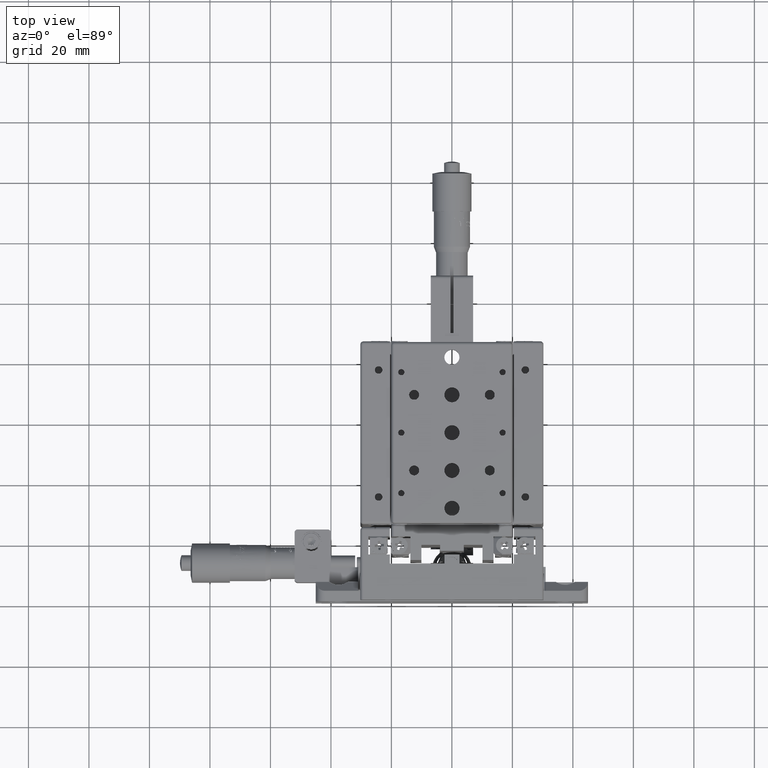
[diagram: clean part render]
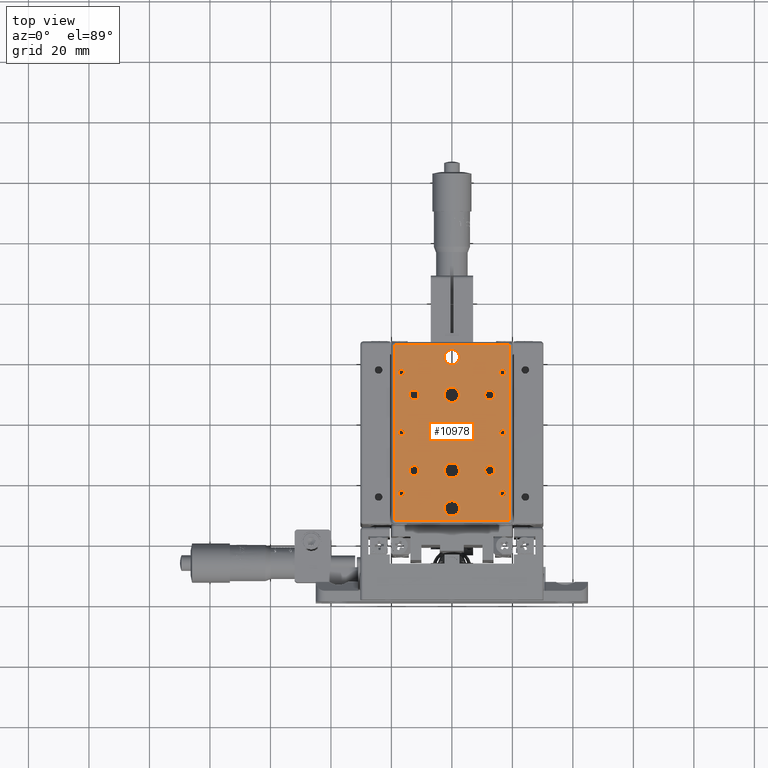
[diagram: same view with one face highlighted and labeled with its STEP entity id]
A machine part, top view. The second image highlights one B-rep face of the part: STEP entity #10978.
In plain terms, the highlighted planar face has unit normal (0, 0, 1).
Its self-contained STEP definition (entity closure, byte-faithful):
#200 = EDGE_CURVE ( 'NONE', #46611, #78117, #34506, .T. ) ;
#279 = VERTEX_POINT ( 'NONE', #13107 ) ;
#371 = VERTEX_POINT ( 'NONE', #43869 ) ;
#702 = AXIS2_PLACEMENT_3D ( 'NONE', #38080, #85993, #44996 ) ;
#1061 = VERTEX_POINT ( 'NONE', #64073 ) ;
#1200 = CIRCLE ( 'NONE', #30913, 1.024999999999994600 ) ;
#1477 = CARTESIAN_POINT ( 'NONE',  ( -18.99999999999952400, 25.05000000000111300, 48.70000000000028700 ) ) ;
#1524 = CIRCLE ( 'NONE', #6821, 1.649999999999998600 ) ;
#1662 = ORIENTED_EDGE ( 'NONE', *, *, #200, .F. ) ;
#2173 = FACE_BOUND ( 'NONE', #4326, .T. ) ;
#2204 = CARTESIAN_POINT ( 'NONE',  ( -12.49999999999950100, 44.20000000000111100, 48.70000000000017300 ) ) ;
#2434 = CARTESIAN_POINT ( 'NONE',  ( 12.50000000000051300, 69.20000000000111100, 48.69999999999976800 ) ) ;
#2708 = VERTEX_POINT ( 'NONE', #81627 ) ;
#2915 = ORIENTED_EDGE ( 'NONE', *, *, #57883, .F. ) ;
#3169 = DIRECTION ( 'NONE',  ( 1.535644949270787300E-014, 3.453685575127654400E-016, 1.000000000000000000 ) ) ;
#3224 = CARTESIAN_POINT ( 'NONE',  ( 5.338210854434249900E-013, 55.05000000000111300, 48.69999999999997400 ) ) ;
#3680 = EDGE_CURVE ( 'NONE', #66928, #82567, #68589, .T. ) ;
#3790 = DIRECTION ( 'NONE',  ( 0.0000000000000000000, -1.000000000000000000, 0.0000000000000000000 ) ) ;
#3983 = CIRCLE ( 'NONE', #57842, 1.024999999999994600 ) ;
#3984 = VERTEX_POINT ( 'NONE', #80500 ) ;
#4004 = EDGE_LOOP ( 'NONE', ( #76847, #74709 ) ) ;
#4287 = CARTESIAN_POINT ( 'NONE',  ( -16.74999999999947800, 75.05000000000112000, 48.70000000000023700 ) ) ;
#4326 = EDGE_LOOP ( 'NONE', ( #41411, #31087 ) ) ;
#4362 = VERTEX_POINT ( 'NONE', #26205 ) ;
#4372 = FACE_BOUND ( 'NONE', #62436, .T. ) ;
#4480 = CARTESIAN_POINT ( 'NONE',  ( 5.373378207125556400E-013, 42.55000000000111300, 48.69999999999997400 ) ) ;
#5045 = LINE ( 'NONE', #15999, #75563 ) ;
#5178 = VERTEX_POINT ( 'NONE', #73928 ) ;
#5508 = EDGE_CURVE ( 'NONE', #30876, #81848, #18377, .T. ) ;
#5647 = DIRECTION ( 'NONE',  ( 1.000000000000000000, 0.0000000000000000000, -1.353930517835563900E-014 ) ) ;
#5651 = AXIS2_PLACEMENT_3D ( 'NONE', #55960, #14995, #62863 ) ;
#5884 = ORIENTED_EDGE ( 'NONE', *, *, #54168, .T. ) ;
#6234 = CARTESIAN_POINT ( 'NONE',  ( 5.374739161144865200E-013, 27.55000000000111300, 48.69999999999998200 ) ) ;
#6543 = EDGE_CURVE ( 'NONE', #12878, #25160, #9501, .T. ) ;
#6648 = CARTESIAN_POINT ( 'NONE',  ( 4.877260638976063900E-013, 45.05000000000112000, 48.69999999999997400 ) ) ;
#6697 = CARTESIAN_POINT ( 'NONE',  ( 16.75000000000050800, 54.02500000000112100, 48.69999999999970400 ) ) ;
#6821 = AXIS2_PLACEMENT_3D ( 'NONE', #48120, #7234, #55035 ) ;
#6962 = AXIS2_PLACEMENT_3D ( 'NONE', #10222, #58029, #17058 ) ;
#7163 = CARTESIAN_POINT ( 'NONE',  ( -16.74999999999951700, 74.02500000000111400, 48.70000000000023700 ) ) ;
#7234 = DIRECTION ( 'NONE',  ( 1.535644949270787300E-014, 3.453685575127654400E-016, 1.000000000000000000 ) ) ;
#7592 = EDGE_LOOP ( 'NONE', ( #29424, #38401 ) ) ;
#7988 = VERTEX_POINT ( 'NONE', #65496 ) ;
#8413 = DIRECTION ( 'NONE',  ( 1.000000000000000000, 3.783065374157739300E-018, -1.610438921456060900E-014 ) ) ;
#9022 = CARTESIAN_POINT ( 'NONE',  ( 12.50000000000051300, 44.20000000000111100, 48.69999999999976800 ) ) ;
#9169 = EDGE_CURVE ( 'NONE', #20147, #28609, #26183, .T. ) ;
#9282 = CARTESIAN_POINT ( 'NONE',  ( 19.00000000000053300, 25.05000000000111300, 48.69999999999967600 ) ) ;
#9366 = DIRECTION ( 'NONE',  ( 1.535644949270787300E-014, 3.453685575127654400E-016, 1.000000000000000000 ) ) ;
#9501 = CIRCLE ( 'NONE', #67448, 1.649999999999998600 ) ;
#9900 = LINE ( 'NONE', #86913, #30144 ) ;
#10138 = DIRECTION ( 'NONE',  ( 3.783065374154825700E-018, -1.000000000000000000, 0.0000000000000000000 ) ) ;
#10222 = CARTESIAN_POINT ( 'NONE',  ( 16.75000000000054700, 75.05000000000112000, 48.69999999999969700 ) ) ;
#10538 = ORIENTED_EDGE ( 'NONE', *, *, #74605, .F. ) ;
#10550 = ORIENTED_EDGE ( 'NONE', *, *, #9169, .F. ) ;
#10664 = EDGE_CURVE ( 'NONE', #29086, #37454, #45061, .T. ) ;
#10978 = ADVANCED_FACE ( 'NONE', ( #40646, #58931, #22528, #4372, #74888, #24658, #56761, #38509, #20342, #2173, #72790, #54585, #36340, #18224, #88835, #70616 ), #55927, .T. ) ;
#11053 = CIRCLE ( 'NONE', #81616, 2.500000000000002200 ) ;
#11183 = DIRECTION ( 'NONE',  ( 1.000000000000000000, 0.0000000000000000000, -1.353930517835563900E-014 ) ) ;
#11372 = DIRECTION ( 'NONE',  ( 3.783065374154825700E-018, -1.000000000000000000, 0.0000000000000000000 ) ) ;
#11489 = DIRECTION ( 'NONE',  ( 1.610438921456060900E-014, 3.453685575127654900E-016, 1.000000000000000000 ) ) ;
#11508 = ORIENTED_EDGE ( 'NONE', *, *, #43019, .T. ) ;
#11736 = EDGE_CURVE ( 'NONE', #25805, #82349, #60781, .T. ) ;
#12159 = CARTESIAN_POINT ( 'NONE',  ( -16.74999999999947800, 55.05000000000111300, 48.70000000000024400 ) ) ;
#12242 = CIRCLE ( 'NONE', #702, 1.024999999999994600 ) ;
#12878 = VERTEX_POINT ( 'NONE', #2434 ) ;
#13025 = CARTESIAN_POINT ( 'NONE',  ( -18.99999999999952400, 84.05000000000110600, 48.70000000000027300 ) ) ;
#13107 = CARTESIAN_POINT ( 'NONE',  ( 16.75000000000050800, 76.07500000000111100, 48.69999999999969700 ) ) ;
#13913 = EDGE_CURVE ( 'NONE', #15892, #79381, #21889, .T. ) ;
#14015 = EDGE_CURVE ( 'NONE', #371, #42203, #1524, .T. ) ;
#14378 = CARTESIAN_POINT ( 'NONE',  ( 5.374644584510511300E-013, 30.05000000000110900, 48.69999999999998200 ) ) ;
#14429 = CIRCLE ( 'NONE', #49945, 2.500000000000002200 ) ;
#14995 = DIRECTION ( 'NONE',  ( 1.535644949270787300E-014, 3.453685575127654400E-016, 1.000000000000000000 ) ) ;
#15269 = AXIS2_PLACEMENT_3D ( 'NONE', #12159, #59952, #18964 ) ;
#15892 = VERTEX_POINT ( 'NONE', #2204 ) ;
#15999 = CARTESIAN_POINT ( 'NONE',  ( -18.99999999999952400, 25.05000000000111300, 48.70000000000028700 ) ) ;
#16140 = DIRECTION ( 'NONE',  ( -3.783065374163912300E-018, 1.000000000000000000, -2.343462550502514100E-016 ) ) ;
#16359 = EDGE_LOOP ( 'NONE', ( #23726, #49791 ) ) ;
#16689 = CARTESIAN_POINT ( 'NONE',  ( 5.338305431068603800E-013, 52.55000000000111300, 48.69999999999997400 ) ) ;
#16916 = CARTESIAN_POINT ( 'NONE',  ( 12.50000000000054200, 65.90000000000111400, 48.69999999999976800 ) ) ;
#17058 = DIRECTION ( 'NONE',  ( 1.000000000000000000, 0.0000000000000000000, -1.353930517835563900E-014 ) ) ;
#17517 = EDGE_CURVE ( 'NONE', #28609, #20147, #42220, .T. ) ;
#17821 = DIRECTION ( 'NONE',  ( 1.610438921456060900E-014, 3.453685575127654900E-016, 1.000000000000000000 ) ) ;
#17940 = CIRCLE ( 'NONE', #78567, 1.649999999999998600 ) ;
#18070 = AXIS2_PLACEMENT_3D ( 'NONE', #39535, #87415, #46431 ) ;
#18224 = FACE_BOUND ( 'NONE', #57721, .T. ) ;
#18377 = CIRCLE ( 'NONE', #24983, 1.024999999999994600 ) ;
#18964 = DIRECTION ( 'NONE',  ( 1.000000000000000000, 0.0000000000000000000, -1.353930517835563900E-014 ) ) ;
#19071 = DIRECTION ( 'NONE',  ( 1.535644949270787300E-014, 3.453685575127654400E-016, 1.000000000000000000 ) ) ;
#19266 = ORIENTED_EDGE ( 'NONE', *, *, #69634, .T. ) ;
#19818 = ORIENTED_EDGE ( 'NONE', *, *, #25253, .F. ) ;
#20147 = VERTEX_POINT ( 'NONE', #16689 ) ;
#20342 = FACE_BOUND ( 'NONE', #38930, .T. ) ;
#20378 = ORIENTED_EDGE ( 'NONE', *, *, #3680, .F. ) ;
#21249 = DIRECTION ( 'NONE',  ( 3.783065374154831100E-018, -1.000000000000000000, 0.0000000000000000000 ) ) ;
#21562 = AXIS2_PLACEMENT_3D ( 'NONE', #63600, #22627, #70432 ) ;
#21889 = CIRCLE ( 'NONE', #77224, 1.649999999999998600 ) ;
#22207 = CARTESIAN_POINT ( 'NONE',  ( 5.372847628457783900E-013, 77.55000000000112000, 48.69999999999996700 ) ) ;
#22528 = FACE_BOUND ( 'NONE', #76607, .T. ) ;
#22627 = DIRECTION ( 'NONE',  ( 1.535644949270787300E-014, 3.453685575127654400E-016, 1.000000000000000000 ) ) ;
#23252 = DIRECTION ( 'NONE',  ( 1.535644949270787300E-014, 3.453685575127654400E-016, 1.000000000000000000 ) ) ;
#23726 = ORIENTED_EDGE ( 'NONE', *, *, #79246, .F. ) ;
#24658 = FACE_BOUND ( 'NONE', #74155, .T. ) ;
#24970 = DIRECTION ( 'NONE',  ( 1.535644949270787300E-014, 3.453685575127654400E-016, 1.000000000000000000 ) ) ;
#24976 = AXIS2_PLACEMENT_3D ( 'NONE', #36334, #84297, #43225 ) ;
#24983 = AXIS2_PLACEMENT_3D ( 'NONE', #78411, #37394, #85332 ) ;
#25160 = VERTEX_POINT ( 'NONE', #16916 ) ;
#25253 = EDGE_CURVE ( 'NONE', #49248, #83910, #11053, .T. ) ;
#25645 = EDGE_CURVE ( 'NONE', #3984, #63080, #77190, .T. ) ;
#25781 = CARTESIAN_POINT ( 'NONE',  ( -16.74999999999947800, 35.05000000000110600, 48.70000000000025200 ) ) ;
#25805 = VERTEX_POINT ( 'NONE', #86177 ) ;
#25877 = CARTESIAN_POINT ( 'NONE',  ( 4.876314872632524300E-013, 70.05000000000110600, 48.69999999999997400 ) ) ;
#26183 = CIRCLE ( 'NONE', #60261, 2.500000000000002200 ) ;
#26205 = CARTESIAN_POINT ( 'NONE',  ( -16.74999999999951700, 56.07500000000110400, 48.70000000000024400 ) ) ;
#26438 = CARTESIAN_POINT ( 'NONE',  ( -12.49999999999947400, 42.55000000000111300, 48.70000000000017300 ) ) ;
#26479 = VERTEX_POINT ( 'NONE', #44076 ) ;
#26600 = ORIENTED_EDGE ( 'NONE', *, *, #49031, .F. ) ;
#26944 = EDGE_CURVE ( 'NONE', #4362, #2708, #67927, .T. ) ;
#27412 = ORIENTED_EDGE ( 'NONE', *, *, #25645, .F. ) ;
#27443 = EDGE_LOOP ( 'NONE', ( #10550, #57791 ) ) ;
#27763 = CIRCLE ( 'NONE', #58978, 1.649999999999998600 ) ;
#28341 = ORIENTED_EDGE ( 'NONE', *, *, #57628, .F. ) ;
#28609 = VERTEX_POINT ( 'NONE', #84968 ) ;
#28681 = EDGE_CURVE ( 'NONE', #279, #7988, #1200, .T. ) ;
#29086 = VERTEX_POINT ( 'NONE', #31030 ) ;
#29249 = DIRECTION ( 'NONE',  ( -1.000000000000000000, -3.783065374157739300E-018, 1.610438921456060900E-014 ) ) ;
#29357 = ORIENTED_EDGE ( 'NONE', *, *, #50760, .F. ) ;
#29424 = ORIENTED_EDGE ( 'NONE', *, *, #10664, .F. ) ;
#29577 = EDGE_CURVE ( 'NONE', #58391, #45079, #61983, .T. ) ;
#29910 = AXIS2_PLACEMENT_3D ( 'NONE', #14378, #62244, #21249 ) ;
#30144 = VECTOR ( 'NONE', #52812, 1000.000000000000000 ) ;
#30876 = VERTEX_POINT ( 'NONE', #6697 ) ;
#30913 = AXIS2_PLACEMENT_3D ( 'NONE', #72676, #31704, #79556 ) ;
#31030 = CARTESIAN_POINT ( 'NONE',  ( -16.74999999999951700, 76.07500000000111100, 48.70000000000023700 ) ) ;
#31087 = ORIENTED_EDGE ( 'NONE', *, *, #13913, .F. ) ;
#31109 = ORIENTED_EDGE ( 'NONE', *, *, #29577, .F. ) ;
#31704 = DIRECTION ( 'NONE',  ( 1.610438921456060900E-014, 3.453685575127654900E-016, 1.000000000000000000 ) ) ;
#32622 = DIRECTION ( 'NONE',  ( 1.000000000000000000, 0.0000000000000000000, -1.353930517835563900E-014 ) ) ;
#32757 = CIRCLE ( 'NONE', #24976, 1.024999999999994600 ) ;
#32815 = ORIENTED_EDGE ( 'NONE', *, *, #51858, .F. ) ;
#32936 = CARTESIAN_POINT ( 'NONE',  ( 12.50000000000054200, 67.55000000000110600, 48.69999999999976800 ) ) ;
#33183 = AXIS2_PLACEMENT_3D ( 'NONE', #26438, #74268, #33289 ) ;
#33289 = DIRECTION ( 'NONE',  ( 0.0000000000000000000, -1.000000000000000000, 0.0000000000000000000 ) ) ;
#33541 = CARTESIAN_POINT ( 'NONE',  ( -16.74999999999951700, 34.02500000000111400, 48.70000000000025200 ) ) ;
#34506 = CIRCLE ( 'NONE', #84749, 1.024999999999994600 ) ;
#34847 = DIRECTION ( 'NONE',  ( 1.535644949270787300E-014, 3.453685575127654400E-016, 1.000000000000000000 ) ) ;
#35323 = ORIENTED_EDGE ( 'NONE', *, *, #28681, .F. ) ;
#35674 = CIRCLE ( 'NONE', #5651, 2.499999999999998700 ) ;
#36334 = CARTESIAN_POINT ( 'NONE',  ( 16.75000000000054700, 55.05000000000111300, 48.69999999999970400 ) ) ;
#36340 = FACE_BOUND ( 'NONE', #42435, .T. ) ;
#37394 = DIRECTION ( 'NONE',  ( 1.610438921456060900E-014, 3.453685575127654900E-016, 1.000000000000000000 ) ) ;
#37454 = VERTEX_POINT ( 'NONE', #7163 ) ;
#37622 = EDGE_CURVE ( 'NONE', #42203, #371, #17940, .T. ) ;
#38013 = CIRCLE ( 'NONE', #81414, 2.500000000000002200 ) ;
#38080 = CARTESIAN_POINT ( 'NONE',  ( -16.74999999999947800, 75.05000000000112000, 48.70000000000023700 ) ) ;
#38401 = ORIENTED_EDGE ( 'NONE', *, *, #74852, .F. ) ;
#38509 = FACE_BOUND ( 'NONE', #82517, .T. ) ;
#38708 = DIRECTION ( 'NONE',  ( 1.535644949270787300E-014, 3.453685575127654400E-016, 1.000000000000000000 ) ) ;
#38930 = EDGE_LOOP ( 'NONE', ( #27412, #28341 ) ) ;
#39152 = DIRECTION ( 'NONE',  ( 1.535644949270787300E-014, 3.453685575127654400E-016, 1.000000000000000000 ) ) ;
#39480 = DIRECTION ( 'NONE',  ( 1.535644949270787300E-014, 3.453685575127654400E-016, 1.000000000000000000 ) ) ;
#39535 = CARTESIAN_POINT ( 'NONE',  ( 16.75000000000054700, 35.05000000000110600, 48.69999999999971200 ) ) ;
#39800 = DIRECTION ( 'NONE',  ( 0.0000000000000000000, -1.000000000000000000, 0.0000000000000000000 ) ) ;
#40646 = FACE_BOUND ( 'NONE', #7592, .T. ) ;
#41411 = ORIENTED_EDGE ( 'NONE', *, *, #83951, .F. ) ;
#41967 = AXIS2_PLACEMENT_3D ( 'NONE', #79722, #38708, #86622 ) ;
#42105 = EDGE_CURVE ( 'NONE', #49678, #87844, #35674, .T. ) ;
#42125 = EDGE_LOOP ( 'NONE', ( #53444, #11508, #19266, #5884 ) ) ;
#42203 = VERTEX_POINT ( 'NONE', #9022 ) ;
#42220 = CIRCLE ( 'NONE', #82692, 2.500000000000002200 ) ;
#42435 = EDGE_LOOP ( 'NONE', ( #88155, #31109 ) ) ;
#43019 = EDGE_CURVE ( 'NONE', #1061, #26479, #9900, .T. ) ;
#43225 = DIRECTION ( 'NONE',  ( 1.000000000000000000, 0.0000000000000000000, -1.353930517835563900E-014 ) ) ;
#43869 = CARTESIAN_POINT ( 'NONE',  ( 12.50000000000054200, 40.90000000000111400, 48.69999999999976800 ) ) ;
#44076 = CARTESIAN_POINT ( 'NONE',  ( 19.00000000000053300, 26.05000000000111300, 48.69999999999967600 ) ) ;
#44082 = CARTESIAN_POINT ( 'NONE',  ( 5.373378207125556400E-013, 42.55000000000111300, 48.69999999999997400 ) ) ;
#44231 = CARTESIAN_POINT ( 'NONE',  ( -12.49999999999950100, 69.20000000000111100, 48.70000000000017300 ) ) ;
#44707 = DIRECTION ( 'NONE',  ( 1.535644949270787300E-014, 3.453685575127654400E-016, 1.000000000000000000 ) ) ;
#44996 = DIRECTION ( 'NONE',  ( 1.000000000000000000, 0.0000000000000000000, -1.353930517835563900E-014 ) ) ;
#45061 = CIRCLE ( 'NONE', #74109, 1.024999999999994600 ) ;
#45079 = VERTEX_POINT ( 'NONE', #82117 ) ;
#45100 = ORIENTED_EDGE ( 'NONE', *, *, #14015, .F. ) ;
#46431 = DIRECTION ( 'NONE',  ( 1.000000000000000000, 0.0000000000000000000, -1.353930517835563900E-014 ) ) ;
#46545 = EDGE_LOOP ( 'NONE', ( #85955, #2915 ) ) ;
#46554 = DIRECTION ( 'NONE',  ( 1.610438921456060900E-014, 3.453685575127654900E-016, 1.000000000000000000 ) ) ;
#46611 = VERTEX_POINT ( 'NONE', #63273 ) ;
#47767 = AXIS2_PLACEMENT_3D ( 'NONE', #1477, #49289, #8413 ) ;
#48120 = CARTESIAN_POINT ( 'NONE',  ( 12.50000000000054200, 42.55000000000111300, 48.69999999999976800 ) ) ;
#49031 = EDGE_CURVE ( 'NONE', #25160, #12878, #27763, .T. ) ;
#49248 = VERTEX_POINT ( 'NONE', #71134 ) ;
#49289 = DIRECTION ( 'NONE',  ( 1.610438921456060900E-014, 3.453685575127653900E-016, 1.000000000000000000 ) ) ;
#49460 = AXIS2_PLACEMENT_3D ( 'NONE', #80175, #39152, #87053 ) ;
#49678 = VERTEX_POINT ( 'NONE', #58848 ) ;
#49791 = ORIENTED_EDGE ( 'NONE', *, *, #42105, .F. ) ;
#49945 = AXIS2_PLACEMENT_3D ( 'NONE', #75831, #34847, #82769 ) ;
#50273 = CARTESIAN_POINT ( 'NONE',  ( -12.49999999999947400, 67.55000000000110600, 48.70000000000017300 ) ) ;
#50282 = CARTESIAN_POINT ( 'NONE',  ( 4.876635483673939600E-013, 82.55000000000112000, 48.69999999999996700 ) ) ;
#50514 = LINE ( 'NONE', #70218, #86947 ) ;
#50760 = EDGE_CURVE ( 'NONE', #7988, #279, #81132, .T. ) ;
#50966 = DIRECTION ( 'NONE',  ( 3.783065374154825700E-018, -1.000000000000000000, 0.0000000000000000000 ) ) ;
#51029 = DIRECTION ( 'NONE',  ( 1.535644949270787300E-014, 3.453685575127654400E-016, 1.000000000000000000 ) ) ;
#51858 = EDGE_CURVE ( 'NONE', #78117, #46611, #69130, .T. ) ;
#52089 = DIRECTION ( 'NONE',  ( 1.610438921456060900E-014, 3.453685575127654900E-016, 1.000000000000000000 ) ) ;
#52282 = DIRECTION ( 'NONE',  ( 1.535644949270787300E-014, 3.453685575127654400E-016, 1.000000000000000000 ) ) ;
#52388 = CARTESIAN_POINT ( 'NONE',  ( -16.74999999999947800, 55.05000000000111300, 48.70000000000024400 ) ) ;
#52769 = EDGE_CURVE ( 'NONE', #82567, #66928, #62475, .T. ) ;
#52812 = DIRECTION ( 'NONE',  ( 1.000000000000000000, 3.783065374157739300E-018, -1.610438921456060900E-014 ) ) ;
#53021 = LINE ( 'NONE', #9282, #87258 ) ;
#53149 = CIRCLE ( 'NONE', #29910, 2.499999999999998700 ) ;
#53444 = ORIENTED_EDGE ( 'NONE', *, *, #82109, .F. ) ;
#53605 = CARTESIAN_POINT ( 'NONE',  ( 16.75000000000050800, 34.02500000000111400, 48.69999999999971200 ) ) ;
#54168 = EDGE_CURVE ( 'NONE', #5178, #74963, #50514, .T. ) ;
#54585 = FACE_BOUND ( 'NONE', #27443, .T. ) ;
#55035 = DIRECTION ( 'NONE',  ( 0.0000000000000000000, -1.000000000000000000, 0.0000000000000000000 ) ) ;
#55927 = PLANE ( 'NONE',  #47767 ) ;
#55960 = CARTESIAN_POINT ( 'NONE',  ( 5.374644584510511300E-013, 30.05000000000110900, 48.69999999999998200 ) ) ;
#56310 = AXIS2_PLACEMENT_3D ( 'NONE', #25781, #73606, #32622 ) ;
#56761 = FACE_BOUND ( 'NONE', #67321, .T. ) ;
#57180 = DIRECTION ( 'NONE',  ( 0.0000000000000000000, -1.000000000000000000, 0.0000000000000000000 ) ) ;
#57427 = AXIS2_PLACEMENT_3D ( 'NONE', #44082, #3169, #50966 ) ;
#57628 = EDGE_CURVE ( 'NONE', #63080, #3984, #82599, .T. ) ;
#57721 = EDGE_LOOP ( 'NONE', ( #20378, #85409 ) ) ;
#57791 = ORIENTED_EDGE ( 'NONE', *, *, #17517, .F. ) ;
#57842 = AXIS2_PLACEMENT_3D ( 'NONE', #58819, #17821, #65686 ) ;
#57883 = EDGE_CURVE ( 'NONE', #2708, #4362, #72879, .T. ) ;
#58029 = DIRECTION ( 'NONE',  ( 1.610438921456060900E-014, 3.453685575127654900E-016, 1.000000000000000000 ) ) ;
#58391 = VERTEX_POINT ( 'NONE', #6648 ) ;
#58819 = CARTESIAN_POINT ( 'NONE',  ( 16.75000000000054700, 35.05000000000110600, 48.69999999999971200 ) ) ;
#58848 = CARTESIAN_POINT ( 'NONE',  ( 4.878527016361018900E-013, 32.55000000000111300, 48.69999999999998200 ) ) ;
#58931 = FACE_BOUND ( 'NONE', #46545, .T. ) ;
#58978 = AXIS2_PLACEMENT_3D ( 'NONE', #32936, #80800, #39800 ) ;
#59287 = DIRECTION ( 'NONE',  ( 1.000000000000000000, 0.0000000000000000000, -1.353930517835563900E-014 ) ) ;
#59842 = EDGE_CURVE ( 'NONE', #82349, #25805, #3983, .T. ) ;
#59952 = DIRECTION ( 'NONE',  ( 1.610438921456060900E-014, 3.453685575127654900E-016, 1.000000000000000000 ) ) ;
#60068 = CARTESIAN_POINT ( 'NONE',  ( 5.338210854434249900E-013, 55.05000000000111300, 48.69999999999997400 ) ) ;
#60261 = AXIS2_PLACEMENT_3D ( 'NONE', #60068, #19071, #66961 ) ;
#60781 = CIRCLE ( 'NONE', #18070, 1.024999999999994600 ) ;
#61983 = CIRCLE ( 'NONE', #57427, 2.500000000000002200 ) ;
#62244 = DIRECTION ( 'NONE',  ( 1.535644949270787300E-014, 3.453685575127654400E-016, 1.000000000000000000 ) ) ;
#62436 = EDGE_LOOP ( 'NONE', ( #80273, #80888 ) ) ;
#62475 = CIRCLE ( 'NONE', #49460, 2.500000000000002200 ) ;
#62863 = DIRECTION ( 'NONE',  ( 3.783065374154831100E-018, -1.000000000000000000, 0.0000000000000000000 ) ) ;
#63080 = VERTEX_POINT ( 'NONE', #44231 ) ;
#63273 = CARTESIAN_POINT ( 'NONE',  ( -16.74999999999951700, 36.07500000000109700, 48.70000000000025200 ) ) ;
#63600 = CARTESIAN_POINT ( 'NONE',  ( -12.49999999999947400, 67.55000000000110600, 48.70000000000017300 ) ) ;
#63801 = EDGE_CURVE ( 'NONE', #81848, #30876, #32757, .T. ) ;
#64073 = CARTESIAN_POINT ( 'NONE',  ( -18.99999999999952400, 26.05000000000111300, 48.70000000000028700 ) ) ;
#64243 = CARTESIAN_POINT ( 'NONE',  ( 12.50000000000054200, 42.55000000000111300, 48.69999999999976800 ) ) ;
#65496 = CARTESIAN_POINT ( 'NONE',  ( 16.75000000000050800, 74.02500000000111400, 48.69999999999969700 ) ) ;
#65686 = DIRECTION ( 'NONE',  ( 1.000000000000000000, 0.0000000000000000000, -1.353930517835563900E-014 ) ) ;
#65962 = CARTESIAN_POINT ( 'NONE',  ( 5.372432440782015700E-013, 67.55000000000110600, 48.69999999999997400 ) ) ;
#66928 = VERTEX_POINT ( 'NONE', #22207 ) ;
#66961 = DIRECTION ( 'NONE',  ( 3.783065374154825700E-018, -1.000000000000000000, 0.0000000000000000000 ) ) ;
#67321 = EDGE_LOOP ( 'NONE', ( #45100, #68615 ) ) ;
#67448 = AXIS2_PLACEMENT_3D ( 'NONE', #85705, #44707, #3790 ) ;
#67927 = CIRCLE ( 'NONE', #69175, 1.024999999999994600 ) ;
#68589 = CIRCLE ( 'NONE', #41967, 2.500000000000002200 ) ;
#68615 = ORIENTED_EDGE ( 'NONE', *, *, #37622, .F. ) ;
#69130 = CIRCLE ( 'NONE', #56310, 1.024999999999994600 ) ;
#69175 = AXIS2_PLACEMENT_3D ( 'NONE', #52388, #11489, #59287 ) ;
#69634 = EDGE_CURVE ( 'NONE', #26479, #5178, #53021, .T. ) ;
#70218 = CARTESIAN_POINT ( 'NONE',  ( -18.99999999999952400, 84.05000000000110600, 48.70000000000027300 ) ) ;
#70432 = DIRECTION ( 'NONE',  ( 0.0000000000000000000, -1.000000000000000000, 0.0000000000000000000 ) ) ;
#70616 = FACE_OUTER_BOUND ( 'NONE', #42125, .T. ) ;
#70688 = DIRECTION ( 'NONE',  ( -3.783065374163912300E-018, 1.000000000000000000, -2.343462550502514100E-016 ) ) ;
#71064 = DIRECTION ( 'NONE',  ( 0.0000000000000000000, -1.000000000000000000, 0.0000000000000000000 ) ) ;
#71134 = CARTESIAN_POINT ( 'NONE',  ( 5.372527017416369600E-013, 65.05000000000110600, 48.69999999999997400 ) ) ;
#71936 = ORIENTED_EDGE ( 'NONE', *, *, #6543, .F. ) ;
#72676 = CARTESIAN_POINT ( 'NONE',  ( 16.75000000000054700, 75.05000000000112000, 48.69999999999969700 ) ) ;
#72790 = FACE_BOUND ( 'NONE', #73679, .T. ) ;
#72800 = DIRECTION ( 'NONE',  ( 3.783065374154825700E-018, -1.000000000000000000, 0.0000000000000000000 ) ) ;
#72879 = CIRCLE ( 'NONE', #15269, 1.024999999999994600 ) ;
#73606 = DIRECTION ( 'NONE',  ( 1.610438921456060900E-014, 3.453685575127654900E-016, 1.000000000000000000 ) ) ;
#73679 = EDGE_LOOP ( 'NONE', ( #19818, #10538 ) ) ;
#73928 = CARTESIAN_POINT ( 'NONE',  ( 19.00000000000053300, 84.05000000000110600, 48.69999999999966200 ) ) ;
#74109 = AXIS2_PLACEMENT_3D ( 'NONE', #4287, #52089, #11183 ) ;
#74155 = EDGE_LOOP ( 'NONE', ( #35323, #29357 ) ) ;
#74268 = DIRECTION ( 'NONE',  ( 1.535644949270787300E-014, 3.453685575127654400E-016, 1.000000000000000000 ) ) ;
#74605 = EDGE_CURVE ( 'NONE', #83910, #49248, #14429, .T. ) ;
#74709 = ORIENTED_EDGE ( 'NONE', *, *, #5508, .F. ) ;
#74852 = EDGE_CURVE ( 'NONE', #37454, #29086, #12242, .T. ) ;
#74887 = CARTESIAN_POINT ( 'NONE',  ( 16.75000000000050800, 56.07500000000110400, 48.69999999999970400 ) ) ;
#74888 = FACE_BOUND ( 'NONE', #4004, .T. ) ;
#74963 = VERTEX_POINT ( 'NONE', #13025 ) ;
#75563 = VECTOR ( 'NONE', #70688, 1000.000000000000000 ) ;
#75831 = CARTESIAN_POINT ( 'NONE',  ( 5.372432440782015700E-013, 67.55000000000110600, 48.69999999999997400 ) ) ;
#76607 = EDGE_LOOP ( 'NONE', ( #1662, #32815 ) ) ;
#76847 = ORIENTED_EDGE ( 'NONE', *, *, #63801, .F. ) ;
#77111 = CARTESIAN_POINT ( 'NONE',  ( -12.49999999999947400, 40.90000000000111400, 48.70000000000017300 ) ) ;
#77190 = CIRCLE ( 'NONE', #87403, 1.649999999999998600 ) ;
#77224 = AXIS2_PLACEMENT_3D ( 'NONE', #80492, #39480, #87366 ) ;
#78117 = VERTEX_POINT ( 'NONE', #33541 ) ;
#78411 = CARTESIAN_POINT ( 'NONE',  ( 16.75000000000054700, 55.05000000000111300, 48.69999999999970400 ) ) ;
#78567 = AXIS2_PLACEMENT_3D ( 'NONE', #64243, #23252, #71064 ) ;
#79246 = EDGE_CURVE ( 'NONE', #87844, #49678, #53149, .T. ) ;
#79381 = VERTEX_POINT ( 'NONE', #77111 ) ;
#79556 = DIRECTION ( 'NONE',  ( 1.000000000000000000, 0.0000000000000000000, -1.353930517835563900E-014 ) ) ;
#79722 = CARTESIAN_POINT ( 'NONE',  ( 5.372753051823430000E-013, 80.05000000000112000, 48.69999999999996700 ) ) ;
#80129 = CIRCLE ( 'NONE', #33183, 1.649999999999998600 ) ;
#80175 = CARTESIAN_POINT ( 'NONE',  ( 5.372753051823430000E-013, 80.05000000000112000, 48.69999999999996700 ) ) ;
#80273 = ORIENTED_EDGE ( 'NONE', *, *, #11736, .F. ) ;
#80492 = CARTESIAN_POINT ( 'NONE',  ( -12.49999999999947400, 42.55000000000111300, 48.70000000000017300 ) ) ;
#80500 = CARTESIAN_POINT ( 'NONE',  ( -12.49999999999947400, 65.90000000000111400, 48.70000000000017300 ) ) ;
#80800 = DIRECTION ( 'NONE',  ( 1.535644949270787300E-014, 3.453685575127654400E-016, 1.000000000000000000 ) ) ;
#80888 = ORIENTED_EDGE ( 'NONE', *, *, #59842, .F. ) ;
#81132 = CIRCLE ( 'NONE', #6962, 1.024999999999994600 ) ;
#81414 = AXIS2_PLACEMENT_3D ( 'NONE', #4480, #52282, #11372 ) ;
#81616 = AXIS2_PLACEMENT_3D ( 'NONE', #65962, #24970, #72800 ) ;
#81627 = CARTESIAN_POINT ( 'NONE',  ( -16.74999999999951700, 54.02500000000112100, 48.70000000000024400 ) ) ;
#81848 = VERTEX_POINT ( 'NONE', #74887 ) ;
#82109 = EDGE_CURVE ( 'NONE', #1061, #74963, #5045, .T. ) ;
#82117 = CARTESIAN_POINT ( 'NONE',  ( 5.373472783759910200E-013, 40.05000000000111300, 48.69999999999997400 ) ) ;
#82349 = VERTEX_POINT ( 'NONE', #53605 ) ;
#82517 = EDGE_LOOP ( 'NONE', ( #26600, #71936 ) ) ;
#82567 = VERTEX_POINT ( 'NONE', #50282 ) ;
#82599 = CIRCLE ( 'NONE', #21562, 1.649999999999998600 ) ;
#82692 = AXIS2_PLACEMENT_3D ( 'NONE', #3224, #51029, #10138 ) ;
#82769 = DIRECTION ( 'NONE',  ( 3.783065374154825700E-018, -1.000000000000000000, 0.0000000000000000000 ) ) ;
#83910 = VERTEX_POINT ( 'NONE', #25877 ) ;
#83951 = EDGE_CURVE ( 'NONE', #79381, #15892, #80129, .T. ) ;
#84297 = DIRECTION ( 'NONE',  ( 1.610438921456060900E-014, 3.453685575127654900E-016, 1.000000000000000000 ) ) ;
#84749 = AXIS2_PLACEMENT_3D ( 'NONE', #87549, #46554, #5647 ) ;
#84902 = EDGE_CURVE ( 'NONE', #45079, #58391, #38013, .T. ) ;
#84968 = CARTESIAN_POINT ( 'NONE',  ( 4.842093286284757500E-013, 57.55000000000111300, 48.69999999999997400 ) ) ;
#85332 = DIRECTION ( 'NONE',  ( 1.000000000000000000, 0.0000000000000000000, -1.353930517835563900E-014 ) ) ;
#85409 = ORIENTED_EDGE ( 'NONE', *, *, #52769, .F. ) ;
#85705 = CARTESIAN_POINT ( 'NONE',  ( 12.50000000000054200, 67.55000000000110600, 48.69999999999976800 ) ) ;
#85955 = ORIENTED_EDGE ( 'NONE', *, *, #26944, .F. ) ;
#85993 = DIRECTION ( 'NONE',  ( 1.610438921456060900E-014, 3.453685575127654900E-016, 1.000000000000000000 ) ) ;
#86177 = CARTESIAN_POINT ( 'NONE',  ( 16.75000000000050800, 36.07500000000109700, 48.69999999999971200 ) ) ;
#86622 = DIRECTION ( 'NONE',  ( 3.783065374154825700E-018, -1.000000000000000000, 0.0000000000000000000 ) ) ;
#86913 = CARTESIAN_POINT ( 'NONE',  ( 19.00000000000053600, 26.05000000000111300, 48.69999999999967600 ) ) ;
#86947 = VECTOR ( 'NONE', #29249, 1000.000000000000000 ) ;
#87053 = DIRECTION ( 'NONE',  ( 3.783065374154825700E-018, -1.000000000000000000, 0.0000000000000000000 ) ) ;
#87258 = VECTOR ( 'NONE', #16140, 1000.000000000000000 ) ;
#87366 = DIRECTION ( 'NONE',  ( 0.0000000000000000000, -1.000000000000000000, 0.0000000000000000000 ) ) ;
#87403 = AXIS2_PLACEMENT_3D ( 'NONE', #50273, #9366, #57180 ) ;
#87415 = DIRECTION ( 'NONE',  ( 1.610438921456060900E-014, 3.453685575127654900E-016, 1.000000000000000000 ) ) ;
#87549 = CARTESIAN_POINT ( 'NONE',  ( -16.74999999999947800, 35.05000000000110600, 48.70000000000025200 ) ) ;
#87844 = VERTEX_POINT ( 'NONE', #6234 ) ;
#88155 = ORIENTED_EDGE ( 'NONE', *, *, #84902, .F. ) ;
#88835 = FACE_BOUND ( 'NONE', #16359, .T. ) ;